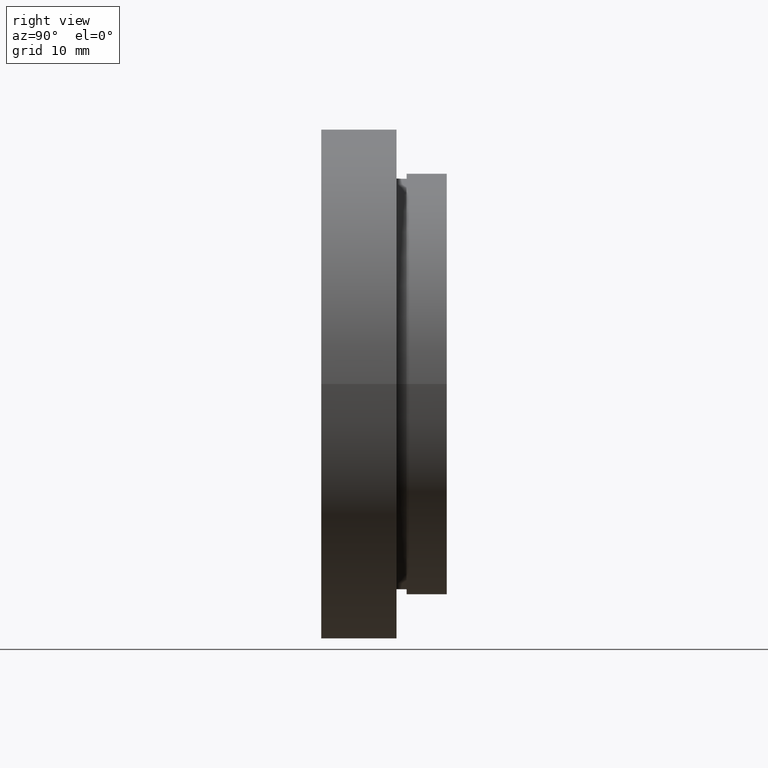
[diagram: clean part render]
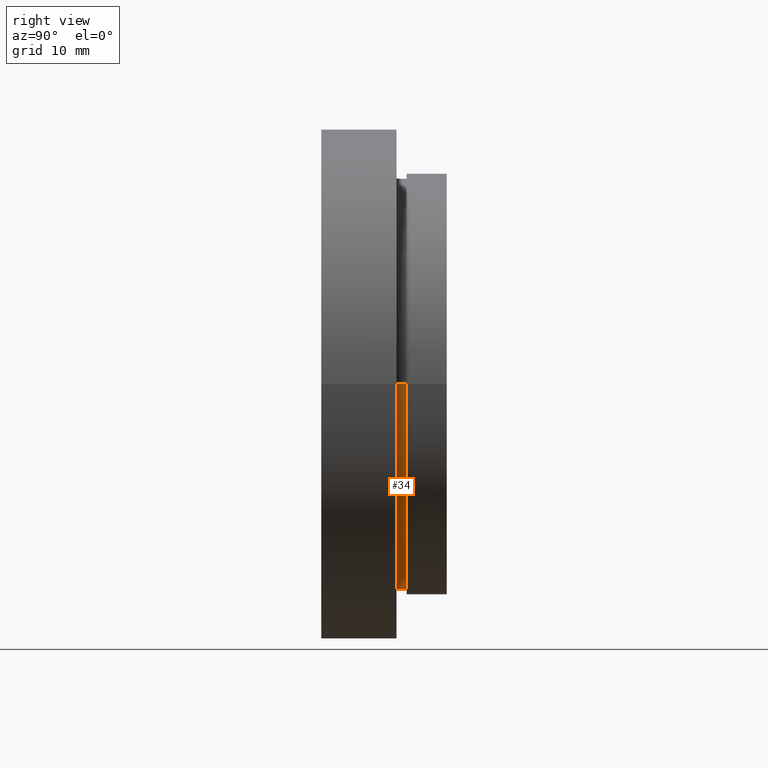
[diagram: same view with one face highlighted and labeled with its STEP entity id]
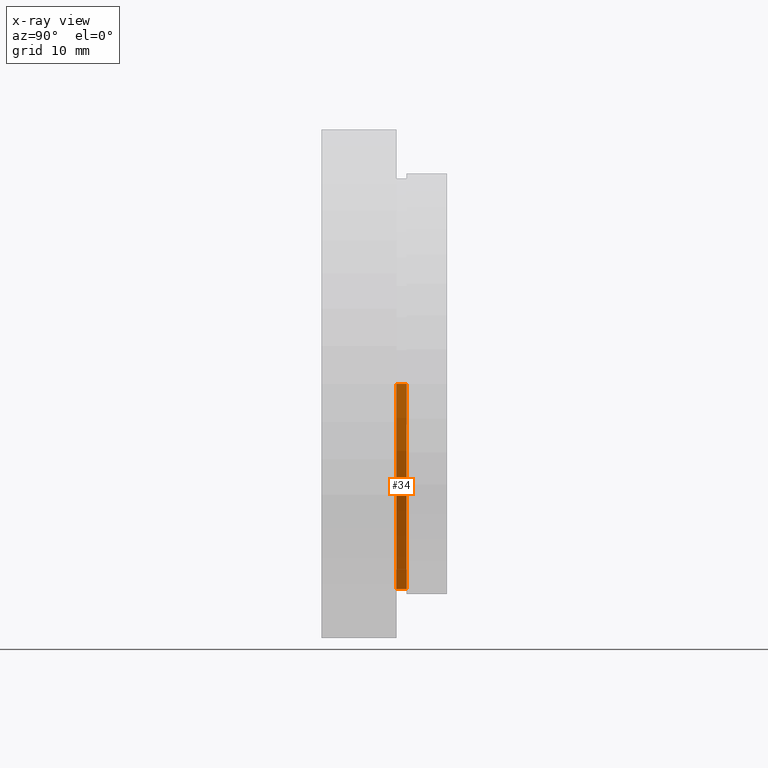
[diagram: x-ray of the same camera — body ghosted, the highlighted face saturated]
A machine part, right view. The second image highlights one B-rep face of the part: STEP entity #34.
The next image is the same camera in x-ray: the body ghosted, the highlighted face saturated — about 0% of this face is hidden behind the body in this view.
In plain terms, the highlighted cylindrical surface (partial cylindrical patch) has radius 20.5 mm, axis along (-0, 1, -0).
Its self-contained STEP definition (entity closure, byte-faithful):
#18 = CARTESIAN_POINT ( 'NONE',  ( 20.50000000000000000, 16.88601823708208000, 2.510525938252074500E-015 ) ) ;
#34 = ADVANCED_FACE ( 'NONE', ( #393 ), #131, .T. ) ;
#104 = EDGE_CURVE ( 'NONE', #455, #249, #353, .T. ) ;
#108 = CARTESIAN_POINT ( 'NONE',  ( 1.149455719078122700E-015, 7.499999999999998200, 0.0000000000000000000 ) ) ;
#128 = CIRCLE ( 'NONE', #144, 20.50000000000000000 ) ;
#129 = VERTEX_POINT ( 'NONE', #591 ) ;
#131 = CYLINDRICAL_SURFACE ( 'NONE', #261, 20.50000000000000000 ) ;
#139 = CARTESIAN_POINT ( 'NONE',  ( 0.0000000000000000000, 16.88601823708207700, 0.0000000000000000000 ) ) ;
#144 = AXIS2_PLACEMENT_3D ( 'NONE', #108, #226, #410 ) ;
#154 = EDGE_CURVE ( 'NONE', #588, #455, #414, .T. ) ;
#178 = AXIS2_PLACEMENT_3D ( 'NONE', #412, #324, #179 ) ;
#179 = DIRECTION ( 'NONE',  ( -1.000000000000000000, -8.462065736472229800E-017, 0.0000000000000000000 ) ) ;
#201 = ORIENTED_EDGE ( 'NONE', *, *, #615, .T. ) ;
#220 = VECTOR ( 'NONE', #470, 1000.000000000000000 ) ;
#226 = DIRECTION ( 'NONE',  ( -1.224646799147351000E-016, 1.000000000000000000, -0.0000000000000000000 ) ) ;
#249 = VERTEX_POINT ( 'NONE', #457 ) ;
#257 = EDGE_CURVE ( 'NONE', #129, #249, #553, .T. ) ;
#261 = AXIS2_PLACEMENT_3D ( 'NONE', #139, #317, #579 ) ;
#276 = CARTESIAN_POINT ( 'NONE',  ( 20.50000000000000000, 8.500000000000000000, 2.510525938252074500E-015 ) ) ;
#317 = DIRECTION ( 'NONE',  ( -1.224646799147351000E-016, 1.000000000000000000, -0.0000000000000000000 ) ) ;
#324 = DIRECTION ( 'NONE',  ( -1.224646799147351000E-016, 1.000000000000000000, -0.0000000000000000000 ) ) ;
#353 = CIRCLE ( 'NONE', #178, 20.50000000000000000 ) ;
#362 = ORIENTED_EDGE ( 'NONE', *, *, #257, .T. ) ;
#382 = CARTESIAN_POINT ( 'NONE',  ( 20.50000000000000000, 7.500000000000000900, 2.510525938252074500E-015 ) ) ;
#393 = FACE_OUTER_BOUND ( 'NONE', #473, .T. ) ;
#408 = VECTOR ( 'NONE', #564, 1000.000000000000000 ) ;
#410 = DIRECTION ( 'NONE',  ( -1.000000000000000000, -1.269309860470834500E-016, 0.0000000000000000000 ) ) ;
#412 = CARTESIAN_POINT ( 'NONE',  ( 1.026991039163387700E-015, 8.499999999999998200, 0.0000000000000000000 ) ) ;
#414 = LINE ( 'NONE', #18, #408 ) ;
#455 = VERTEX_POINT ( 'NONE', #276 ) ;
#457 = CARTESIAN_POINT ( 'NONE',  ( -20.50000000000000000, 8.499999999999996400, 0.0000000000000000000 ) ) ;
#468 = CARTESIAN_POINT ( 'NONE',  ( -20.50000000000000000, 16.88601823708207300, 0.0000000000000000000 ) ) ;
#470 = DIRECTION ( 'NONE',  ( -1.224646799147351000E-016, 1.000000000000000000, -0.0000000000000000000 ) ) ;
#473 = EDGE_LOOP ( 'NONE', ( #604, #201, #362, #620 ) ) ;
#553 = LINE ( 'NONE', #468, #220 ) ;
#564 = DIRECTION ( 'NONE',  ( -1.224646799147351000E-016, 1.000000000000000000, -0.0000000000000000000 ) ) ;
#579 = DIRECTION ( 'NONE',  ( -1.000000000000000000, -1.692413147294446000E-016, 0.0000000000000000000 ) ) ;
#588 = VERTEX_POINT ( 'NONE', #382 ) ;
#591 = CARTESIAN_POINT ( 'NONE',  ( -20.50000000000000000, 7.499999999999995600, 0.0000000000000000000 ) ) ;
#604 = ORIENTED_EDGE ( 'NONE', *, *, #154, .F. ) ;
#615 = EDGE_CURVE ( 'NONE', #588, #129, #128, .T. ) ;
#620 = ORIENTED_EDGE ( 'NONE', *, *, #104, .F. ) ;